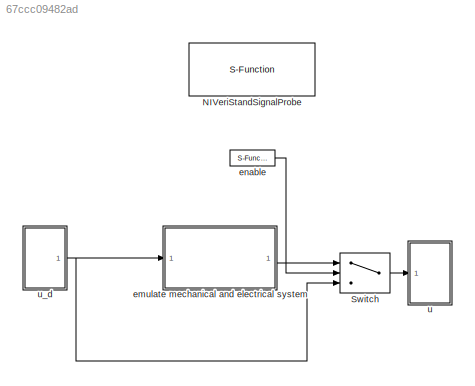
MODEL slx_67ccc09482ad
KIND model
BLOCK [S-Function] NIVeriStandSignalProbe
  EnableBusSupport = off
  FunctionName = NIVeriStandSignalProbe
  Parameters = 1
  Ports = []
BLOCK [Switch] Switch
  Criteria = u2 ~= 0
  InputSameDT = off
  SaturateOnIntegerOverflow = off
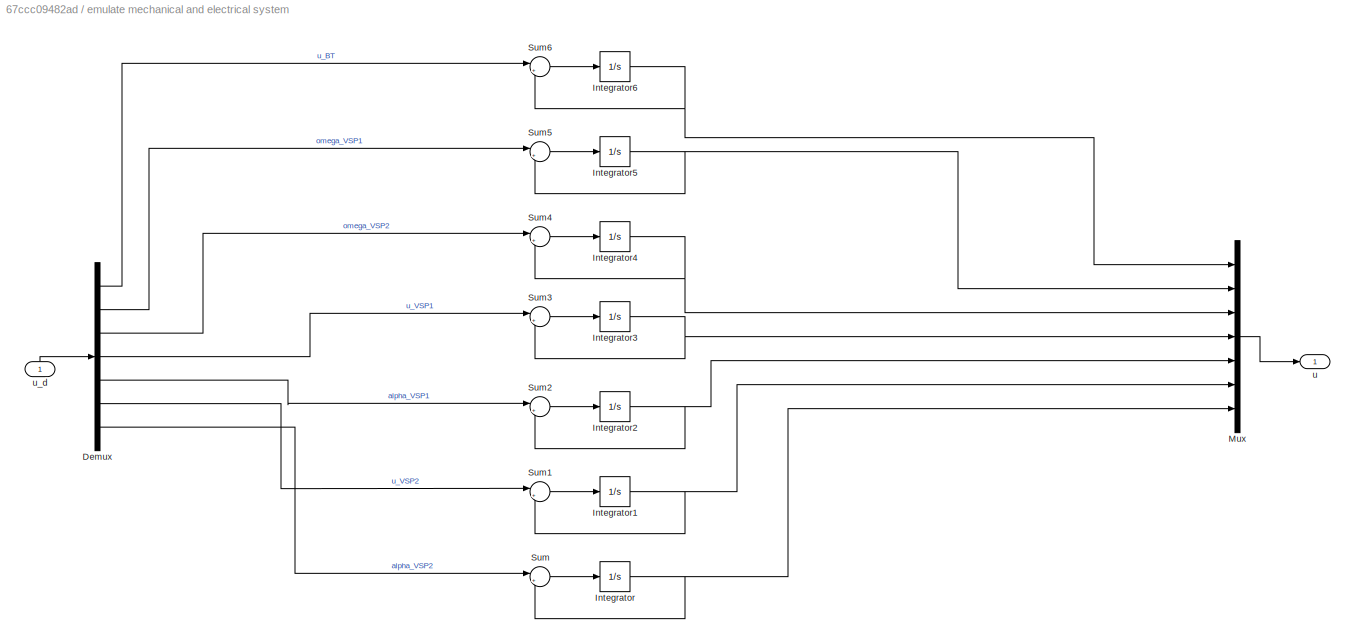
BLOCK [SubSystem] emulate mechanical and electrical system
  Ports = [1, 1]
  RequestExecContextInheritance = off
BLOCK [Demux] emulate mechanical and electrical system/Demux
  DisplayOption = bar
  Outputs = 7
  Ports = [1, 7]
BLOCK [Integrator] emulate mechanical and electrical system/Integrator
  Ports = [1, 1]
BLOCK [Integrator] emulate mechanical and electrical system/Integrator1
  Ports = [1, 1]
BLOCK [Integrator] emulate mechanical and electrical system/Integrator2
  Ports = [1, 1]
BLOCK [Integrator] emulate mechanical and electrical system/Integrator3
  Ports = [1, 1]
BLOCK [Integrator] emulate mechanical and electrical system/Integrator4
  Ports = [1, 1]
BLOCK [Integrator] emulate mechanical and electrical system/Integrator5
  Ports = [1, 1]
BLOCK [Integrator] emulate mechanical and electrical system/Integrator6
  Ports = [1, 1]
BLOCK [Mux] emulate mechanical and electrical system/Mux
  DisplayOption = bar
  Inputs = 7
  Ports = [7, 1]
BLOCK [Sum] emulate mechanical and electrical system/Sum
  IconShape = round
  InputSameDT = off
  Inputs = |+-
  OutDataTypeStr = Inherit: Inherit via internal rule
  Ports = [2, 1]
  SaturateOnIntegerOverflow = off
BLOCK [Sum] emulate mechanical and electrical system/Sum1
  IconShape = round
  InputSameDT = off
  Inputs = |+-
  OutDataTypeStr = Inherit: Inherit via internal rule
  Ports = [2, 1]
  SaturateOnIntegerOverflow = off
BLOCK [Sum] emulate mechanical and electrical system/Sum2
  IconShape = round
  InputSameDT = off
  Inputs = |+-
  OutDataTypeStr = Inherit: Inherit via internal rule
  Ports = [2, 1]
  SaturateOnIntegerOverflow = off
BLOCK [Sum] emulate mechanical and electrical system/Sum3
  IconShape = round
  InputSameDT = off
  Inputs = |+-
  OutDataTypeStr = Inherit: Inherit via internal rule
  Ports = [2, 1]
  SaturateOnIntegerOverflow = off
BLOCK [Sum] emulate mechanical and electrical system/Sum4
  IconShape = round
  InputSameDT = off
  Inputs = |+-
  OutDataTypeStr = Inherit: Inherit via internal rule
  Ports = [2, 1]
  SaturateOnIntegerOverflow = off
BLOCK [Sum] emulate mechanical and electrical system/Sum5
  IconShape = round
  InputSameDT = off
  Inputs = |+-
  OutDataTypeStr = Inherit: Inherit via internal rule
  Ports = [2, 1]
  SaturateOnIntegerOverflow = off
BLOCK [Sum] emulate mechanical and electrical system/Sum6
  IconShape = round
  InputSameDT = off
  Inputs = |+-
  OutDataTypeStr = Inherit: Inherit via internal rule
  Ports = [2, 1]
  SaturateOnIntegerOverflow = off
BLOCK [Outport] emulate mechanical and electrical system/u
  IconDisplay = Port number
BLOCK [Inport] emulate mechanical and electrical system/u_d
  IconDisplay = Port number
BLOCK [S-Function] enable
  CopyFcn = NIVeriStand_MDL_functions('', 'IO_copy');
  DeleteFcn = NIVeriStand_MDL_functions('', 'IO_delete');
  EnableBusSupport = off
  FunctionName = NIVeriStandIO
  MoveFcn = set_param(gcb, 'Mask', 'on');
  Parameters = width dtype portnum stime stype btype
  Ports = [0, 1]
  Priority = 1
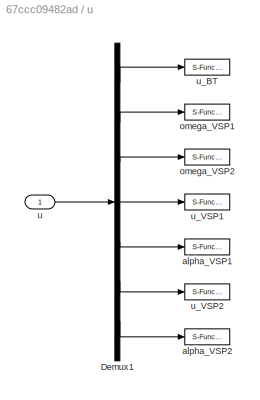
BLOCK [SubSystem] u
  Ports = [1]
  RequestExecContextInheritance = off
BLOCK [Demux] u/Demux1
  DisplayOption = bar
  Outputs = 7
  Ports = [1, 7]
BLOCK [S-Function] u/alpha_VSP1
  CopyFcn = NIVeriStand_MDL_functions('', 'IO_copy');
  DeleteFcn = NIVeriStand_MDL_functions('', 'IO_delete');
  EnableBusSupport = off
  FunctionName = NIVeriStandIO
  MoveFcn = set_param(gcb, 'Mask', 'on');
  Parameters = width dtype portnum stime stype btype
  Ports = [1]
  Priority = 7
BLOCK [S-Function] u/alpha_VSP2
  CopyFcn = NIVeriStand_MDL_functions('', 'IO_copy');
  DeleteFcn = NIVeriStand_MDL_functions('', 'IO_delete');
  EnableBusSupport = off
  FunctionName = NIVeriStandIO
  MoveFcn = set_param(gcb, 'Mask', 'on');
  Parameters = width dtype portnum stime stype btype
  Ports = [1]
  Priority = 4
BLOCK [S-Function] u/omega_VSP1
  CopyFcn = NIVeriStand_MDL_functions('', 'IO_copy');
  DeleteFcn = NIVeriStand_MDL_functions('', 'IO_delete');
  EnableBusSupport = off
  FunctionName = NIVeriStandIO
  MoveFcn = set_param(gcb, 'Mask', 'on');
  Parameters = width dtype portnum stime stype btype
  Ports = [1]
  Priority = 1
BLOCK [S-Function] u/omega_VSP2
  CopyFcn = NIVeriStand_MDL_functions('', 'IO_copy');
  DeleteFcn = NIVeriStand_MDL_functions('', 'IO_delete');
  EnableBusSupport = off
  FunctionName = NIVeriStandIO
  MoveFcn = set_param(gcb, 'Mask', 'on');
  Parameters = width dtype portnum stime stype btype
  Ports = [1]
  Priority = 2
BLOCK [Inport] u/u
  IconDisplay = Port number
BLOCK [S-Function] u/u_BT
  CopyFcn = NIVeriStand_MDL_functions('', 'IO_copy');
  DeleteFcn = NIVeriStand_MDL_functions('', 'IO_delete');
  EnableBusSupport = off
  FunctionName = NIVeriStandIO
  MoveFcn = set_param(gcb, 'Mask', 'on');
  Parameters = width dtype portnum stime stype btype
  Ports = [1]
  Priority = 3
BLOCK [S-Function] u/u_VSP1
  CopyFcn = NIVeriStand_MDL_functions('', 'IO_copy');
  DeleteFcn = NIVeriStand_MDL_functions('', 'IO_delete');
  EnableBusSupport = off
  FunctionName = NIVeriStandIO
  MoveFcn = set_param(gcb, 'Mask', 'on');
  Parameters = width dtype portnum stime stype btype
  Ports = [1]
  Priority = 6
BLOCK [S-Function] u/u_VSP2
  CopyFcn = NIVeriStand_MDL_functions('', 'IO_copy');
  DeleteFcn = NIVeriStand_MDL_functions('', 'IO_delete');
  EnableBusSupport = off
  FunctionName = NIVeriStandIO
  MoveFcn = set_param(gcb, 'Mask', 'on');
  Parameters = width dtype portnum stime stype btype
  Ports = [1]
  Priority = 5
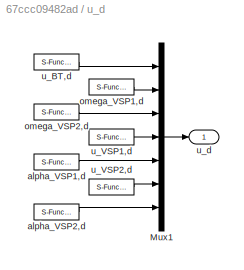
BLOCK [SubSystem] u_d
  Ports = [0, 1]
  RequestExecContextInheritance = off
BLOCK [Mux] u_d/Mux1
  DisplayOption = bar
  Inputs = 7
  Ports = [7, 1]
BLOCK [S-Function] u_d/alpha_VSP1,d
  CopyFcn = NIVeriStand_MDL_functions('', 'IO_copy');
  DeleteFcn = NIVeriStand_MDL_functions('', 'IO_delete');
  EnableBusSupport = off
  FunctionName = NIVeriStandIO
  MoveFcn = set_param(gcb, 'Mask', 'on');
  Parameters = width dtype portnum stime stype btype
  Ports = [0, 1]
  Priority = 1
BLOCK [S-Function] u_d/alpha_VSP2,d
  CopyFcn = NIVeriStand_MDL_functions('', 'IO_copy');
  DeleteFcn = NIVeriStand_MDL_functions('', 'IO_delete');
  EnableBusSupport = off
  FunctionName = NIVeriStandIO
  MoveFcn = set_param(gcb, 'Mask', 'on');
  Parameters = width dtype portnum stime stype btype
  Ports = [0, 1]
  Priority = 3
BLOCK [S-Function] u_d/omega_VSP1,d
  CopyFcn = NIVeriStand_MDL_functions('', 'IO_copy');
  DeleteFcn = NIVeriStand_MDL_functions('', 'IO_delete');
  EnableBusSupport = off
  FunctionName = NIVeriStandIO
  MoveFcn = set_param(gcb, 'Mask', 'on');
  Parameters = width dtype portnum stime stype btype
  Ports = [0, 1]
  Priority = 6
BLOCK [S-Function] u_d/omega_VSP2,d
  CopyFcn = NIVeriStand_MDL_functions('', 'IO_copy');
  DeleteFcn = NIVeriStand_MDL_functions('', 'IO_delete');
  EnableBusSupport = off
  FunctionName = NIVeriStandIO
  MoveFcn = set_param(gcb, 'Mask', 'on');
  Parameters = width dtype portnum stime stype btype
  Ports = [0, 1]
  Priority = 7
BLOCK [S-Function] u_d/u_BT,d
  CopyFcn = NIVeriStand_MDL_functions('', 'IO_copy');
  DeleteFcn = NIVeriStand_MDL_functions('', 'IO_delete');
  EnableBusSupport = off
  FunctionName = NIVeriStandIO
  MoveFcn = set_param(gcb, 'Mask', 'on');
  Parameters = width dtype portnum stime stype btype
  Ports = [0, 1]
  Priority = 5
BLOCK [S-Function] u_d/u_VSP1,d
  CopyFcn = NIVeriStand_MDL_functions('', 'IO_copy');
  DeleteFcn = NIVeriStand_MDL_functions('', 'IO_delete');
  EnableBusSupport = off
  FunctionName = NIVeriStandIO
  MoveFcn = set_param(gcb, 'Mask', 'on');
  Parameters = width dtype portnum stime stype btype
  Ports = [0, 1]
  Priority = 2
BLOCK [S-Function] u_d/u_VSP2,d
  CopyFcn = NIVeriStand_MDL_functions('', 'IO_copy');
  DeleteFcn = NIVeriStand_MDL_functions('', 'IO_delete');
  EnableBusSupport = off
  FunctionName = NIVeriStandIO
  MoveFcn = set_param(gcb, 'Mask', 'on');
  Parameters = width dtype portnum stime stype btype
  Ports = [0, 1]
  Priority = 4
BLOCK [Outport] u_d/u_d
  IconDisplay = Port number
LINE Switch:1 -> u:1
LINE emulate mechanical and electrical system/Demux:1 -> emulate mechanical and electrical system/Sum6:1
LINE emulate mechanical and electrical system/Demux:2 -> emulate mechanical and electrical system/Sum5:1
LINE emulate mechanical and electrical system/Demux:3 -> emulate mechanical and electrical system/Sum4:1
LINE emulate mechanical and electrical system/Demux:4 -> emulate mechanical and electrical system/Sum3:1
LINE emulate mechanical and electrical system/Demux:5 -> emulate mechanical and electrical system/Sum2:1
LINE emulate mechanical and electrical system/Demux:6 -> emulate mechanical and electrical system/Sum1:1
LINE emulate mechanical and electrical system/Demux:7 -> emulate mechanical and electrical system/Sum:1
NET emulate mechanical and electrical system/Integrator1:1 -> emulate mechanical and electrical system/Mux:6, emulate mechanical and electrical system/Sum1:2
NET emulate mechanical and electrical system/Integrator2:1 -> emulate mechanical and electrical system/Mux:5, emulate mechanical and electrical system/Sum2:2
NET emulate mechanical and electrical system/Integrator3:1 -> emulate mechanical and electrical system/Mux:4, emulate mechanical and electrical system/Sum3:2
NET emulate mechanical and electrical system/Integrator4:1 -> emulate mechanical and electrical system/Mux:3, emulate mechanical and electrical system/Sum4:2
NET emulate mechanical and electrical system/Integrator5:1 -> emulate mechanical and electrical system/Mux:2, emulate mechanical and electrical system/Sum5:2
NET emulate mechanical and electrical system/Integrator6:1 -> emulate mechanical and electrical system/Mux:1, emulate mechanical and electrical system/Sum6:2
NET emulate mechanical and electrical system/Integrator:1 -> emulate mechanical and electrical system/Mux:7, emulate mechanical and electrical system/Sum:2
LINE emulate mechanical and electrical system/Mux:1 -> emulate mechanical and electrical system/u:1
LINE emulate mechanical and electrical system/Sum1:1 -> emulate mechanical and electrical system/Integrator1:1
LINE emulate mechanical and electrical system/Sum2:1 -> emulate mechanical and electrical system/Integrator2:1
LINE emulate mechanical and electrical system/Sum3:1 -> emulate mechanical and electrical system/Integrator3:1
LINE emulate mechanical and electrical system/Sum4:1 -> emulate mechanical and electrical system/Integrator4:1
LINE emulate mechanical and electrical system/Sum5:1 -> emulate mechanical and electrical system/Integrator5:1
LINE emulate mechanical and electrical system/Sum6:1 -> emulate mechanical and electrical system/Integrator6:1
LINE emulate mechanical and electrical system/Sum:1 -> emulate mechanical and electrical system/Integrator:1
LINE emulate mechanical and electrical system/u_d:1 -> emulate mechanical and electrical system/Demux:1
LINE emulate mechanical and electrical system:1 -> Switch:1
LINE enable:1 -> Switch:2
LINE u/Demux1:1 -> u/u_BT:1
LINE u/Demux1:2 -> u/omega_VSP1:1
LINE u/Demux1:3 -> u/omega_VSP2:1
LINE u/Demux1:4 -> u/u_VSP1:1
LINE u/Demux1:5 -> u/alpha_VSP1:1
LINE u/Demux1:6 -> u/u_VSP2:1
LINE u/Demux1:7 -> u/alpha_VSP2:1
LINE u/u:1 -> u/Demux1:1
LINE u_d/Mux1:1 -> u_d/u_d:1
LINE u_d/alpha_VSP1,d:1 -> u_d/Mux1:5
LINE u_d/alpha_VSP2,d:1 -> u_d/Mux1:7
LINE u_d/omega_VSP1,d:1 -> u_d/Mux1:2
LINE u_d/omega_VSP2,d:1 -> u_d/Mux1:3
LINE u_d/u_BT,d:1 -> u_d/Mux1:1
LINE u_d/u_VSP1,d:1 -> u_d/Mux1:4
LINE u_d/u_VSP2,d:1 -> u_d/Mux1:6
NET u_d:1 -> Switch:3, emulate mechanical and electrical system:1
note: NET lines group one-source signal fan-out (src -> all destinations, sorted); 1:1 wires keep LINE
